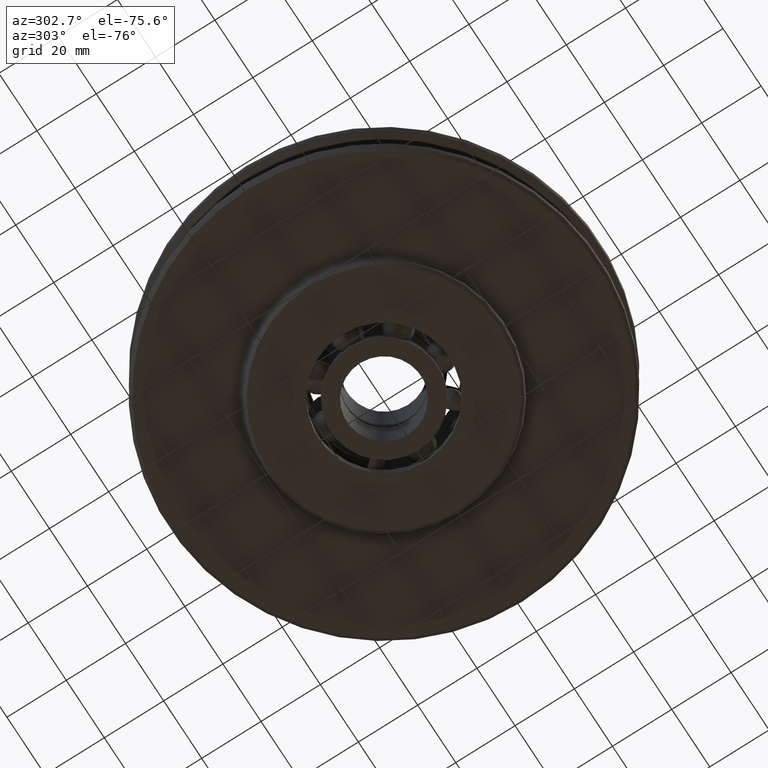
[diagram: clean part render]
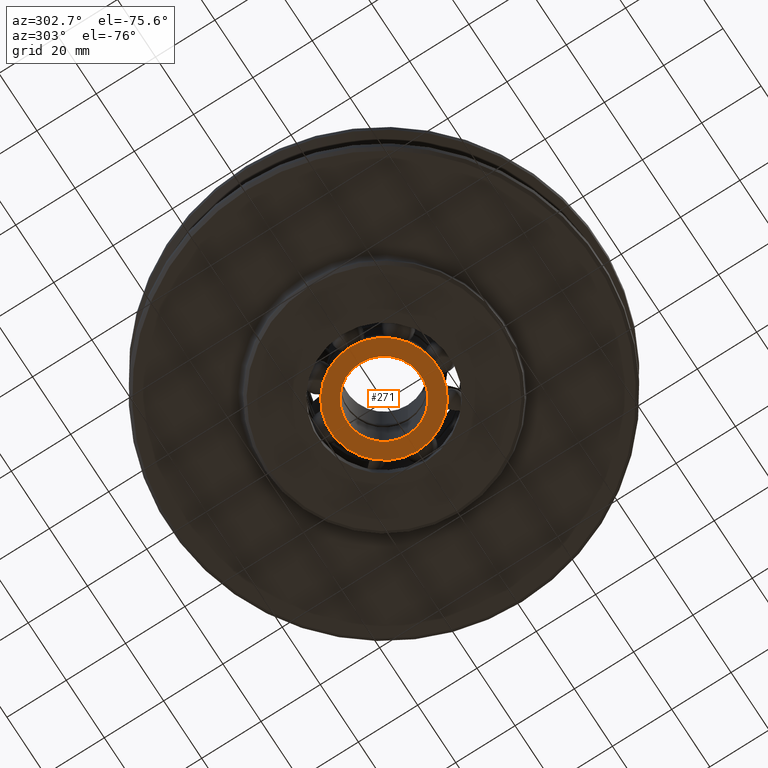
[diagram: same view with one face highlighted and labeled with its STEP entity id]
A machine part, auxiliary view. The second image highlights one B-rep face of the part: STEP entity #271.
In plain terms, the highlighted planar face has unit normal (0, 0, -1).
Its self-contained STEP definition (entity closure, byte-faithful):
#271=ADVANCED_FACE('',(#608,#609),#610,.T.);
#608=FACE_BOUND('',#1018,.T.);
#609=FACE_OUTER_BOUND('',#1019,.T.);
#610=PLANE('',#1020);
#1018=EDGE_LOOP('',(#1867,#1868));
#1019=EDGE_LOOP('',(#1869,#1870));
#1020=AXIS2_PLACEMENT_3D('',#1871,#1872,#1873);
#1867=ORIENTED_EDGE('',*,*,#2953,.T.);
#1868=ORIENTED_EDGE('',*,*,#2934,.T.);
#1869=ORIENTED_EDGE('',*,*,#2951,.T.);
#1870=ORIENTED_EDGE('',*,*,#2944,.T.);
#1871=CARTESIAN_POINT('',(0.0,0.0,-17.0));
#1872=DIRECTION('',(0.0,0.0,-1.0));
#1873=DIRECTION('',(-1.0,0.0,0.0));
#2934=EDGE_CURVE('',#3725,#3722,#3726,.T.);
#2944=EDGE_CURVE('',#3743,#3740,#3744,.T.);
#2951=EDGE_CURVE('',#3740,#3743,#3752,.T.);
#2953=EDGE_CURVE('',#3722,#3725,#3754,.T.);
#3722=VERTEX_POINT('',#6867);
#3725=VERTEX_POINT('',#6871);
#3726=CIRCLE('',#6872,12.5);
#3740=VERTEX_POINT('',#6889);
#3743=VERTEX_POINT('',#6893);
#3744=CIRCLE('',#6894,18.0);
#3752=CIRCLE('',#6903,18.0);
#3754=CIRCLE('',#6905,12.5);
#6867=CARTESIAN_POINT('',(12.5,0.0,-17.0));
#6871=CARTESIAN_POINT('',(-12.5,-1.53080849893419E-015,-17.0));
#6872=AXIS2_PLACEMENT_3D('',#8317,#8318,#8319);
#6889=CARTESIAN_POINT('',(18.0,0.0,-17.0));
#6893=CARTESIAN_POINT('',(-18.0,2.20436423846524E-015,-17.0));
#6894=AXIS2_PLACEMENT_3D('',#8333,#8334,#8335);
#6903=AXIS2_PLACEMENT_3D('',#8346,#8347,#8348);
#6905=AXIS2_PLACEMENT_3D('',#8349,#8350,#8351);
#8317=CARTESIAN_POINT('',(0.0,0.0,-17.0));
#8318=DIRECTION('',(0.0,-0.0,1.0));
#8319=DIRECTION('',(1.0,0.0,0.0));
#8333=CARTESIAN_POINT('',(0.0,0.0,-17.0));
#8334=DIRECTION('',(0.0,0.0,-1.0));
#8335=DIRECTION('',(1.0,0.0,0.0));
#8346=CARTESIAN_POINT('',(0.0,0.0,-17.0));
#8347=DIRECTION('',(0.0,0.0,-1.0));
#8348=DIRECTION('',(1.0,0.0,0.0));
#8349=CARTESIAN_POINT('',(0.0,0.0,-17.0));
#8350=DIRECTION('',(0.0,-0.0,1.0));
#8351=DIRECTION('',(1.0,0.0,0.0));